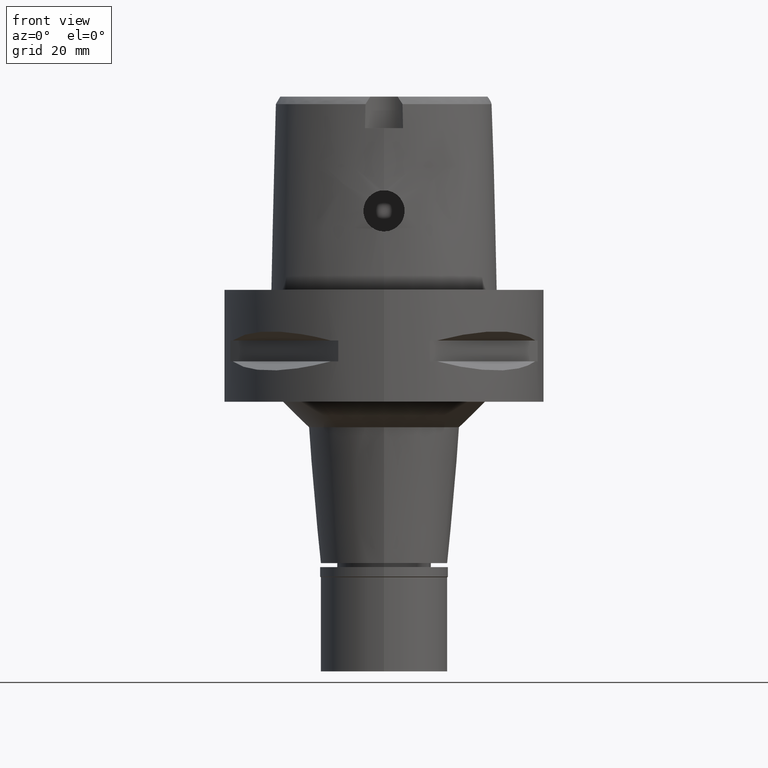
[diagram: clean part render]
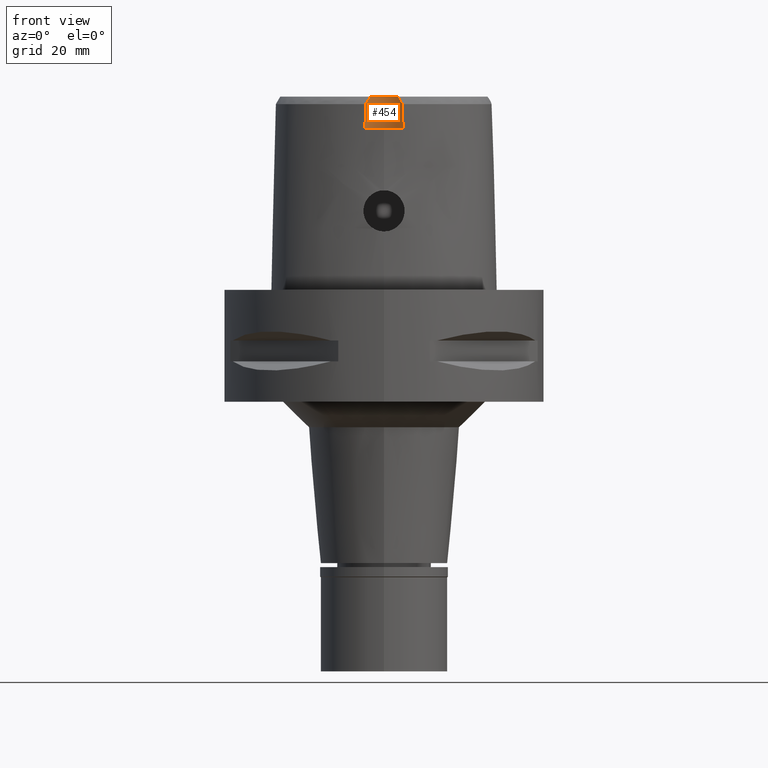
[diagram: same view with one face highlighted and labeled with its STEP entity id]
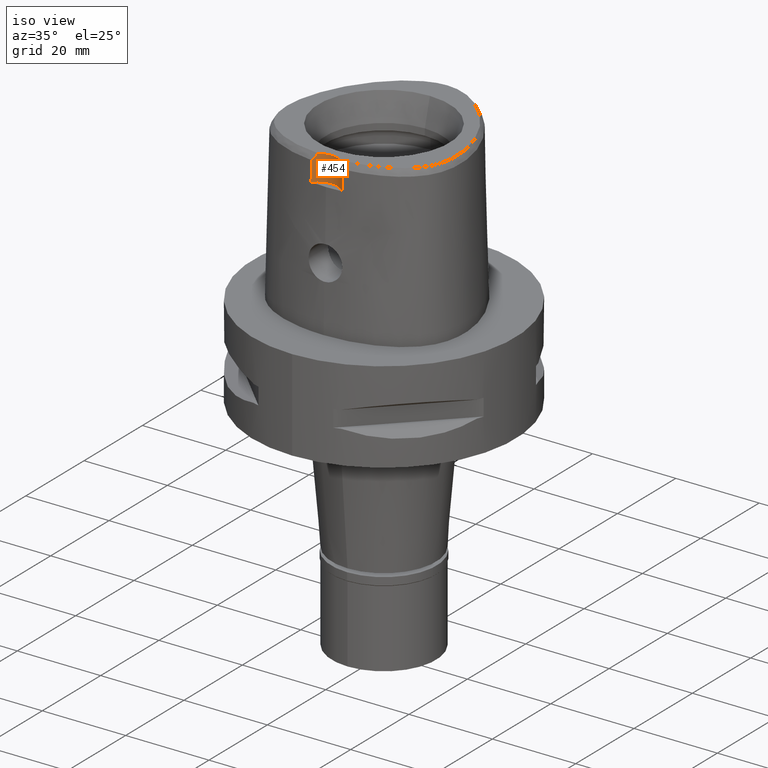
[diagram: same view with one face highlighted and labeled with its STEP entity id]
A machine part, front view. The second image highlights one B-rep face of the part: STEP entity #454.
A second angle (iso view) of the same face is appended — the face is thin or edge-on in the first view.
In plain terms, the highlighted cylindrical surface (edge-blend (fillet) strip) has radius 5 mm, axis along (0, 0, 1).
Its self-contained STEP definition (entity closure, byte-faithful):
#239 = CARTESIAN_POINT ( 'NONE',  ( 2.682287482605000051, -18.78036330228999873, 38.00000000000000000 ) ) ;
#266 = DIRECTION ( 'NONE',  ( 0.0000000000000000000, 1.000000000000000000, 0.0000000000000000000 ) ) ;
#347 = CARTESIAN_POINT ( 'NONE',  ( -3.014271304891900982, -18.99139391535641153, 37.59976690301740376 ) ) ;
#367 = AXIS2_PLACEMENT_3D ( 'NONE', #2131, #3571, #266 ) ;
#381 = ORIENTED_EDGE ( 'NONE', *, *, #2794, .T. ) ;
#454 = ADVANCED_FACE ( 'NONE', ( #2366 ), #1552, .F. ) ;
#570 = B_SPLINE_CURVE_WITH_KNOTS ( 'NONE', 3,
 ( #995, #2359, #3156, #3642, #2412, #239 ),
 .UNSPECIFIED., .F., .F.,
 ( 4, 1, 1, 4 ),
 ( 0.0000000000000000000, 0.3333333333333000081, 0.6666666666667000474, 1.000000000000000000 ),
 .UNSPECIFIED. ) ;
#630 = B_SPLINE_CURVE_WITH_KNOTS ( 'NONE', 3,
 ( #698, #347, #3456, #4858 ),
 .UNSPECIFIED., .F., .F.,
 ( 4, 4 ),
 ( 0.0000000000000000000, 1.000000000000000000 ),
 .UNSPECIFIED. ) ;
#698 = CARTESIAN_POINT ( 'NONE',  ( -2.682279906006999948, -18.78035848609999903, 38.00000000000000000 ) ) ;
#720 = EDGE_CURVE ( 'NONE', #2809, #1139, #3336, .T. ) ;
#797 = DIRECTION ( 'NONE',  ( 0.0000000000000000000, 0.0000000000000000000, -1.000000000000000000 ) ) ;
#924 = CARTESIAN_POINT ( 'NONE',  ( 3.736696120837999402, -19.67778323291999953, 31.80000004972999861 ) ) ;
#995 = CARTESIAN_POINT ( 'NONE',  ( 3.637738219117000238, -19.56971420299000286, 36.52185956443999970 ) ) ;
#1139 = VERTEX_POINT ( 'NONE', #2445 ) ;
#1147 = AXIS2_PLACEMENT_3D ( 'NONE', #3085, #797, #4127 ) ;
#1388 = EDGE_CURVE ( 'NONE', #1561, #2855, #2476, .T. ) ;
#1477 = CARTESIAN_POINT ( 'NONE',  ( 3.671249151389730514, -19.60525176641679579, 34.94790639287000289 ) ) ;
#1552 = CYLINDRICAL_SURFACE ( 'NONE', #2956, 5.000000000000000888 ) ;
#1561 = VERTEX_POINT ( 'NONE', #2921 ) ;
#1594 = CARTESIAN_POINT ( 'NONE',  ( 0.0000000000000000000, -23.00000000000000000, 38.00000000000000000 ) ) ;
#1774 = B_SPLINE_CURVE_WITH_KNOTS ( 'NONE', 3,
 ( #3069, #4581, #3394, #2632 ),
 .UNSPECIFIED., .F., .F.,
 ( 4, 4 ),
 ( 0.0000000000000000000, 1.000000000000000000 ),
 .UNSPECIFIED. ) ;
#1924 = CARTESIAN_POINT ( 'NONE',  ( -3.637738201363999835, -19.56971413236999879, 36.52186244848000030 ) ) ;
#1931 = EDGE_CURVE ( 'NONE', #3177, #2809, #4470, .T. ) ;
#2131 = CARTESIAN_POINT ( 'NONE',  ( 0.0000000000000000000, -23.00000000000000000, 38.00000000000000000 ) ) ;
#2346 = DIRECTION ( 'NONE',  ( 0.0000000000000000000, 1.000000000000000000, 0.0000000000000000000 ) ) ;
#2359 = CARTESIAN_POINT ( 'NONE',  ( 3.538199819293999848, -19.46415604757000040, 36.71705290106999797 ) ) ;
#2366 = FACE_OUTER_BOUND ( 'NONE', #2495, .T. ) ;
#2412 = CARTESIAN_POINT ( 'NONE',  ( 2.793223575013000115, -18.85088181214000258, 37.86625814525000067 ) ) ;
#2445 = CARTESIAN_POINT ( 'NONE',  ( 3.637738219117000238, -19.56971420299000286, 36.52185956443999970 ) ) ;
#2476 = CIRCLE ( 'NONE', #367, 5.000000000000000888 ) ;
#2495 = EDGE_LOOP ( 'NONE', ( #381, #4000, #3923, #2667, #4878, #3585 ) ) ;
#2561 = CARTESIAN_POINT ( 'NONE',  ( -3.736722311398999796, -19.67781602443999844, 31.80000000000000071 ) ) ;
#2632 = CARTESIAN_POINT ( 'NONE',  ( -3.736722311398999796, -19.67781602443999844, 31.80000000000000071 ) ) ;
#2667 = ORIENTED_EDGE ( 'NONE', *, *, #720, .T. ) ;
#2794 = EDGE_CURVE ( 'NONE', #2855, #4462, #630, .T. ) ;
#2809 = VERTEX_POINT ( 'NONE', #4119 ) ;
#2848 = EDGE_CURVE ( 'NONE', #1139, #1561, #570, .T. ) ;
#2855 = VERTEX_POINT ( 'NONE', #3134 ) ;
#2921 = CARTESIAN_POINT ( 'NONE',  ( 2.682287482605000051, -18.78036330228999873, 38.00000000000000000 ) ) ;
#2956 = AXIS2_PLACEMENT_3D ( 'NONE', #1594, #3435, #2346 ) ;
#3069 = CARTESIAN_POINT ( 'NONE',  ( -3.637738201363999835, -19.56971413236999879, 36.52186244848000030 ) ) ;
#3085 = CARTESIAN_POINT ( 'NONE',  ( 0.0000000000000000000, -23.00000000000000000, 31.80000000000000071 ) ) ;
#3134 = CARTESIAN_POINT ( 'NONE',  ( -2.682279906006999948, -18.78035848609999903, 38.00000000000000000 ) ) ;
#3156 = CARTESIAN_POINT ( 'NONE',  ( 3.333222360550999852, -19.26521770173999926, 37.08686065140000210 ) ) ;
#3177 = VERTEX_POINT ( 'NONE', #2561 ) ;
#3336 = B_SPLINE_CURVE_WITH_KNOTS ( 'NONE', 3,
 ( #924, #4867, #1477, #4800 ),
 .UNSPECIFIED., .F., .F.,
 ( 4, 4 ),
 ( 0.0000000000000000000, 1.000000000000000000 ),
 .UNSPECIFIED. ) ;
#3394 = CARTESIAN_POINT ( 'NONE',  ( -3.704239276368590961, -19.64128040965313460, 33.37395414949332917 ) ) ;
#3435 = DIRECTION ( 'NONE',  ( 0.0000000000000000000, 0.0000000000000000000, 1.000000000000000000 ) ) ;
#3456 = CARTESIAN_POINT ( 'NONE',  ( -3.339321438903578798, -19.25325016378037546, 37.10705438584406579 ) ) ;
#3571 = DIRECTION ( 'NONE',  ( 0.0000000000000000000, 0.0000000000000000000, 1.000000000000000000 ) ) ;
#3585 = ORIENTED_EDGE ( 'NONE', *, *, #1388, .T. ) ;
#3642 = CARTESIAN_POINT ( 'NONE',  ( 3.013285367658000258, -19.00308137044000034, 37.57851087275999902 ) ) ;
#3833 = EDGE_CURVE ( 'NONE', #4462, #3177, #1774, .T. ) ;
#3923 = ORIENTED_EDGE ( 'NONE', *, *, #1931, .T. ) ;
#4000 = ORIENTED_EDGE ( 'NONE', *, *, #3833, .T. ) ;
#4119 = CARTESIAN_POINT ( 'NONE',  ( 3.736696120837999402, -19.67778323291999953, 31.80000004972999861 ) ) ;
#4127 = DIRECTION ( 'NONE',  ( -0.7473444622798740555, 0.6644367951126772809, 0.0000000000000000000 ) ) ;
#4462 = VERTEX_POINT ( 'NONE', #1924 ) ;
#4470 = CIRCLE ( 'NONE', #1147, 5.000000000000000000 ) ;
#4581 = CARTESIAN_POINT ( 'NONE',  ( -3.671249123513567802, -19.60525173594972514, 34.94790829898666829 ) ) ;
#4800 = CARTESIAN_POINT ( 'NONE',  ( 3.637738219117000238, -19.56971420299000286, 36.52185956443999970 ) ) ;
#4858 = CARTESIAN_POINT ( 'NONE',  ( -3.637738201363999835, -19.56971413236999879, 36.52186244848000030 ) ) ;
#4867 = CARTESIAN_POINT ( 'NONE',  ( 3.704239288984441103, -19.64128042389065598, 33.37395322129999897 ) ) ;
#4878 = ORIENTED_EDGE ( 'NONE', *, *, #2848, .T. ) ;